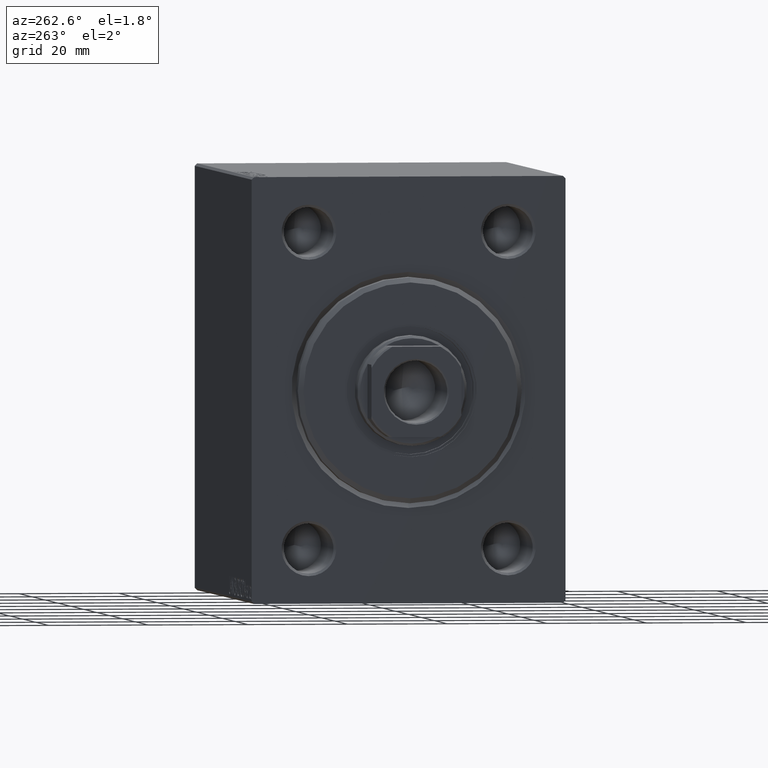
[diagram: clean part render]
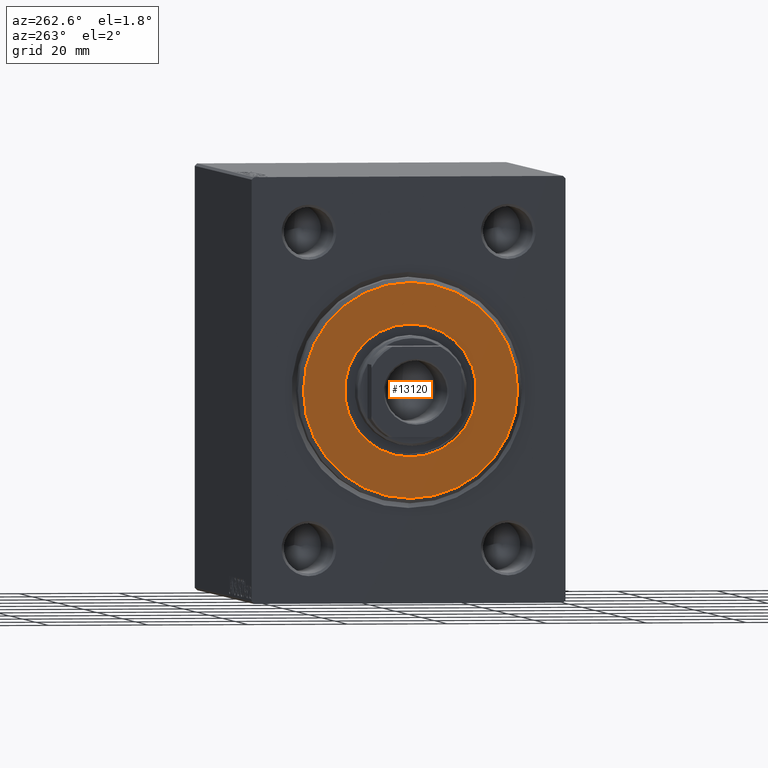
[diagram: same view with one face highlighted and labeled with its STEP entity id]
A machine part, auxiliary view. The second image highlights one B-rep face of the part: STEP entity #13120.
In plain terms, the highlighted planar face has unit normal (-1, 0, 0).
Its self-contained STEP definition (entity closure, byte-faithful):
#140 = EDGE_CURVE ( 'NONE', #16615, #31764, #24069, .T. ) ;
#2078 = ORIENTED_EDGE ( 'NONE', *, *, #30424, .F. ) ;
#5286 = CIRCLE ( 'NONE', #30350, 13.25000000000000178 ) ;
#6456 = CARTESIAN_POINT ( 'NONE',  ( 3.000000000000000000, 0.000000000000000000, 0.000000000000000000 ) ) ;
#7236 = AXIS2_PLACEMENT_3D ( 'NONE', #26556, #40476, #40252 ) ;
#7514 = DIRECTION ( 'NONE',  ( 0.000000000000000000, 0.000000000000000000, -1.000000000000000000 ) ) ;
#11751 = CARTESIAN_POINT ( 'NONE',  ( 3.000000000000000000, 0.000000000000000000, 0.000000000000000000 ) ) ;
#12904 = PLANE ( 'NONE',  #7236 ) ;
#13098 = DIRECTION ( 'NONE',  ( 0.000000000000000000, 0.000000000000000000, -1.000000000000000000 ) ) ;
#13100 = CARTESIAN_POINT ( 'NONE',  ( 3.000000000000000000, 0.000000000000000000, 21.50000000000000355 ) ) ;
#13120 = ADVANCED_FACE ( 'NONE', ( #26772, #22762 ), #12904, .T. ) ;
#14463 = VERTEX_POINT ( 'NONE', #29827 ) ;
#15811 = DIRECTION ( 'NONE',  ( 1.000000000000000000, 0.000000000000000000, 0.000000000000000000 ) ) ;
#15940 = CARTESIAN_POINT ( 'NONE',  ( 3.000000000000000000, 2.694222958124177598E-15, -21.50000000000000355 ) ) ;
#16329 = DIRECTION ( 'NONE',  ( 1.000000000000000000, 0.000000000000000000, 0.000000000000000000 ) ) ;
#16338 = AXIS2_PLACEMENT_3D ( 'NONE', #6456, #16329, #30440 ) ;
#16615 = VERTEX_POINT ( 'NONE', #13100 ) ;
#18828 = CARTESIAN_POINT ( 'NONE',  ( 3.000000000000000000, 0.000000000000000000, 0.000000000000000000 ) ) ;
#19269 = ORIENTED_EDGE ( 'NONE', *, *, #140, .T. ) ;
#19404 = ORIENTED_EDGE ( 'NONE', *, *, #28956, .T. ) ;
#20311 = CARTESIAN_POINT ( 'NONE',  ( 3.000000000000000000, 1.622657008870243277E-15, 13.25000000000000178 ) ) ;
#22762 = FACE_BOUND ( 'NONE', #42005, .T. ) ;
#24069 = CIRCLE ( 'NONE', #33362, 21.50000000000000355 ) ;
#25480 = VERTEX_POINT ( 'NONE', #20311 ) ;
#26556 = CARTESIAN_POINT ( 'NONE',  ( 3.000000000000000000, 0.000000000000000000, 0.000000000000000000 ) ) ;
#26772 = FACE_OUTER_BOUND ( 'NONE', #34720, .T. ) ;
#28553 = ORIENTED_EDGE ( 'NONE', *, *, #41038, .F. ) ;
#28956 = EDGE_CURVE ( 'NONE', #31764, #16615, #41806, .T. ) ;
#29827 = CARTESIAN_POINT ( 'NONE',  ( 3.000000000000000000, 0.000000000000000000, -13.25000000000000178 ) ) ;
#30350 = AXIS2_PLACEMENT_3D ( 'NONE', #40462, #15811, #13098 ) ;
#30424 = EDGE_CURVE ( 'NONE', #25480, #14463, #5286, .T. ) ;
#30440 = DIRECTION ( 'NONE',  ( 0.000000000000000000, 0.000000000000000000, -1.000000000000000000 ) ) ;
#31764 = VERTEX_POINT ( 'NONE', #15940 ) ;
#33362 = AXIS2_PLACEMENT_3D ( 'NONE', #11751, #38245, #7514 ) ;
#34720 = EDGE_LOOP ( 'NONE', ( #19269, #19404 ) ) ;
#38245 = DIRECTION ( 'NONE',  ( 1.000000000000000000, -0.000000000000000000, 0.000000000000000000 ) ) ;
#38813 = DIRECTION ( 'NONE',  ( 1.000000000000000000, -0.000000000000000000, 0.000000000000000000 ) ) ;
#39028 = DIRECTION ( 'NONE',  ( 0.000000000000000000, 0.000000000000000000, -1.000000000000000000 ) ) ;
#40252 = DIRECTION ( 'NONE',  ( 0.000000000000000000, 0.000000000000000000, -1.000000000000000000 ) ) ;
#40462 = CARTESIAN_POINT ( 'NONE',  ( 3.000000000000000000, 0.000000000000000000, 0.000000000000000000 ) ) ;
#40476 = DIRECTION ( 'NONE',  ( 1.000000000000000000, -0.000000000000000000, 0.000000000000000000 ) ) ;
#41038 = EDGE_CURVE ( 'NONE', #14463, #25480, #42824, .T. ) ;
#41806 = CIRCLE ( 'NONE', #43946, 21.50000000000000355 ) ;
#42005 = EDGE_LOOP ( 'NONE', ( #28553, #2078 ) ) ;
#42824 = CIRCLE ( 'NONE', #16338, 13.25000000000000178 ) ;
#43946 = AXIS2_PLACEMENT_3D ( 'NONE', #18828, #38813, #39028 ) ;